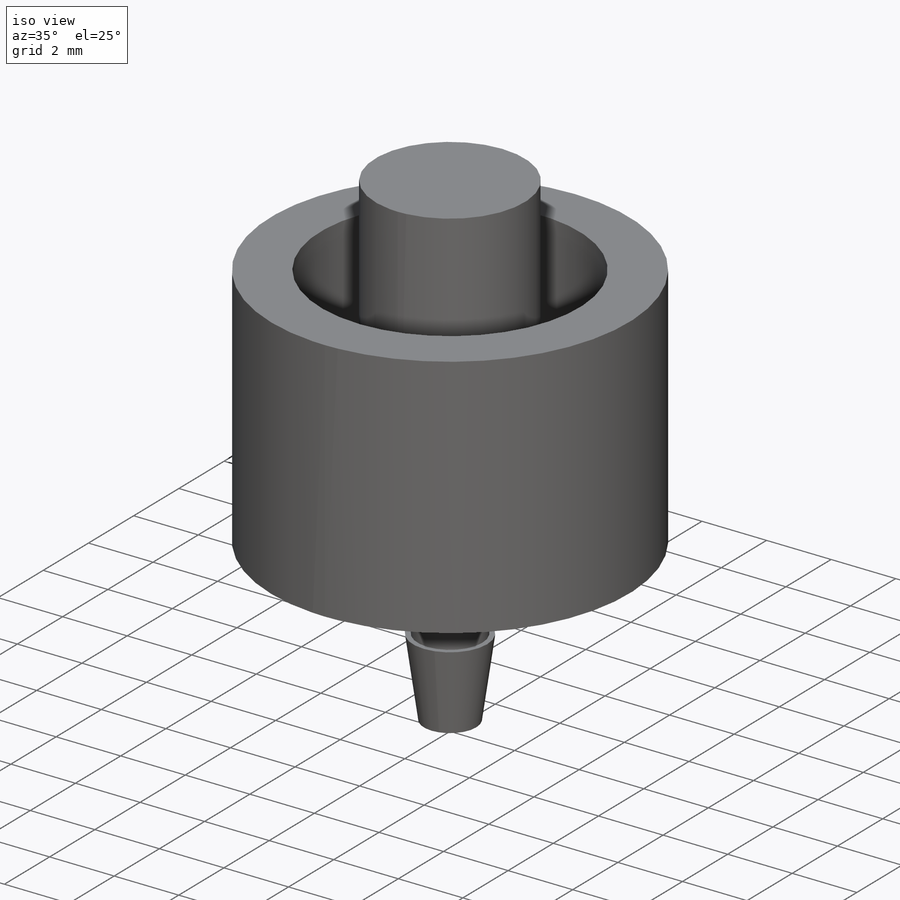
[diagram: iso view]
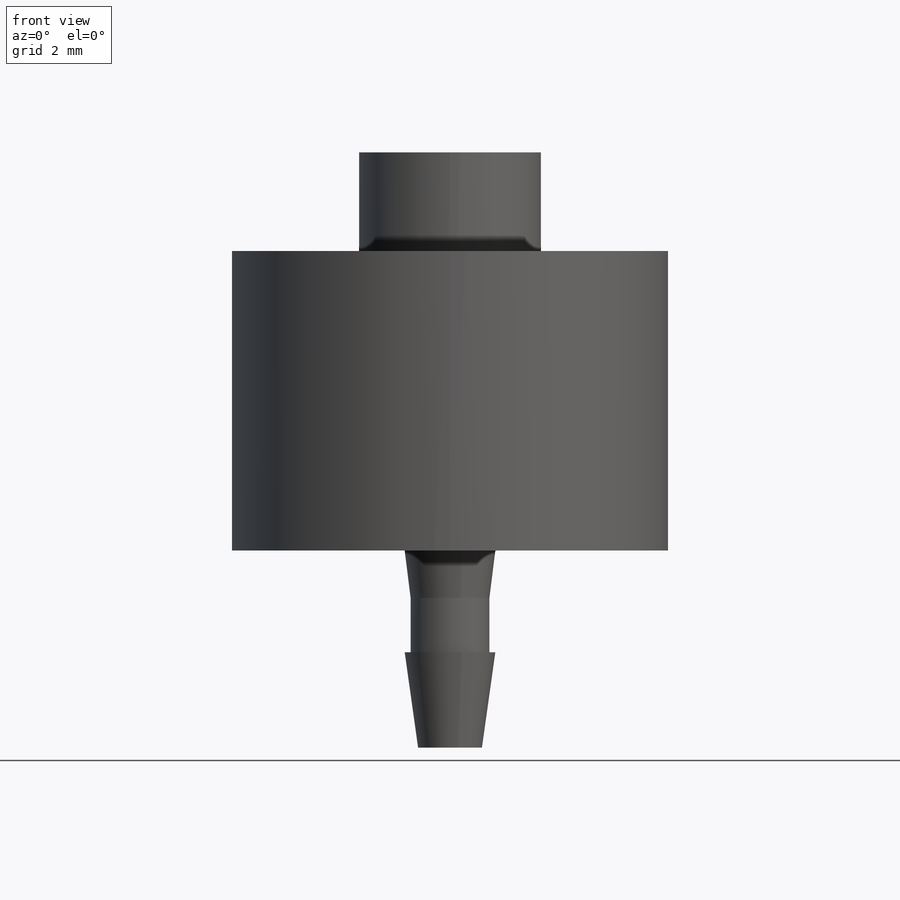
[diagram: front view]
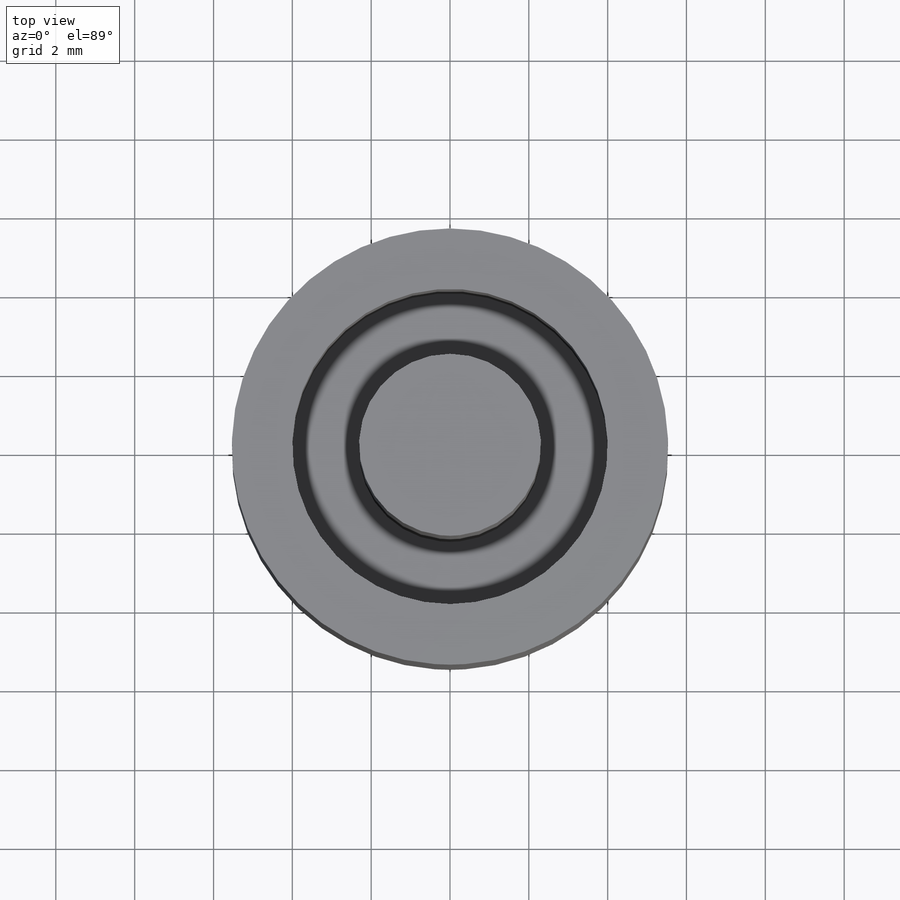
[diagram: top view]
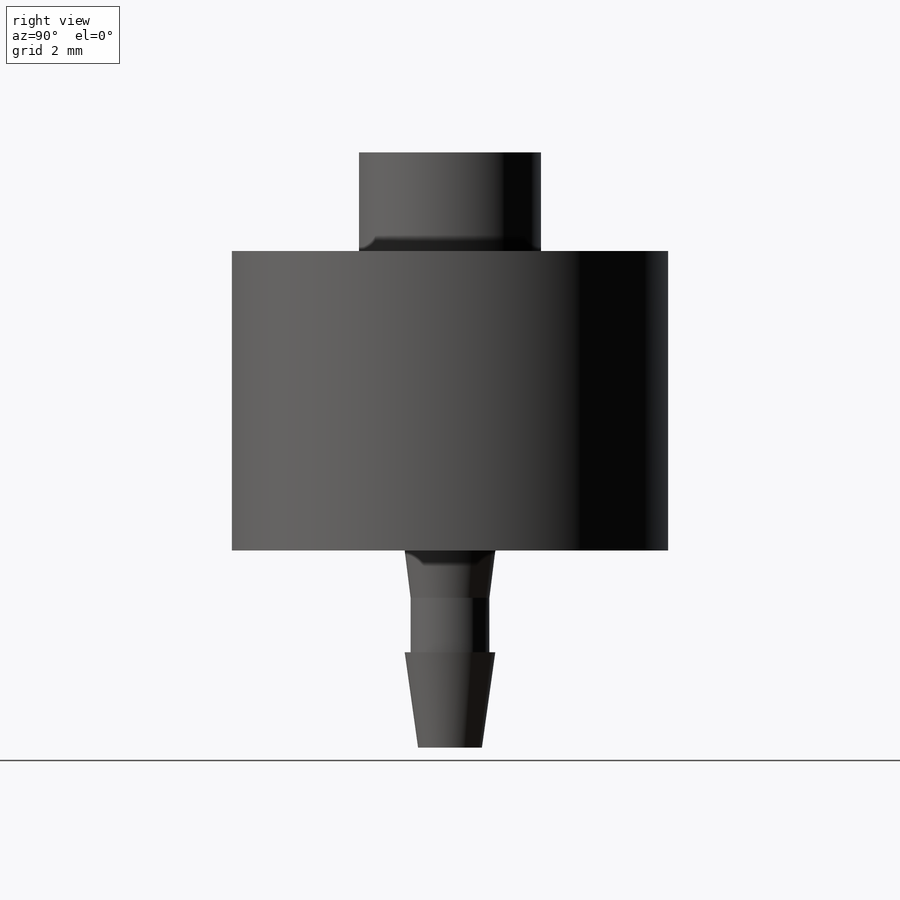
[diagram: right view]
SOLIDWORKS PART (.sldprt)
format: sldprt  version: not decoded by parser v0  size: 182,784 bytes
history: native  units: mm
features: sketch x5, extrude x2, cut_extrude x2, material x1, fillet x1, pattern_circular x1, revolve x1 (+12 scaffold rows collapsed)
feature tree (25):
  scaffold x12  (default folders/planes/origin — collapsed)
  material  "Material <not specified>"
  sketch  "Sketch1"  dims[D1=11.07mm]
  extrude  "Boss-Extrude1"  Depth=7.6mm
  fillet  "Fillet1"  Radius=0.7mm
  sketch  "Sketch2"  dims[D1=6.0mm]
  cut_extrude  "Cut-Extrude1"  Depth=7.6mm
  pattern_circular  "CirPattern1"  Count=10 Angle=360deg
  sketch  "Sketch3"  dims[c1.D1=~1.827384mm c2.D1=~178.841928deg c3.D1=1.0mm c3.D2=1.15mm c3.D3=1.2mm c3.D4=5.0mm c3.D5=2.42mm c3.D6=1.15mm c3.D7=0.81mm]
  revolve  "Revolve1"  Angle=360deg
  sketch  "Sketch4"  dims[D1=8.0mm]
  cut_extrude  "Cut-Extrude2"  Depth=6.4mm
  sketch  "Sketch5"
  extrude  "Boss-Extrude2"  Depth=8.9mm
decode coverage: 11 of 12 modeling features carry decoded parameters
note: ~ marks probable driven/reference dimensions
note: suppression state not decoded; provenance and decode notes live in map.json
